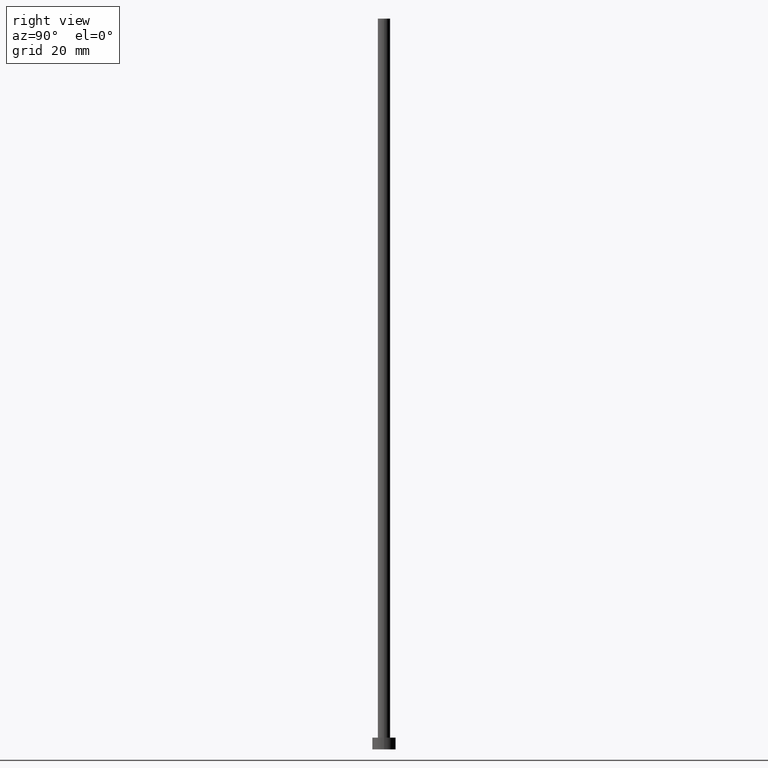
[diagram: clean part render]
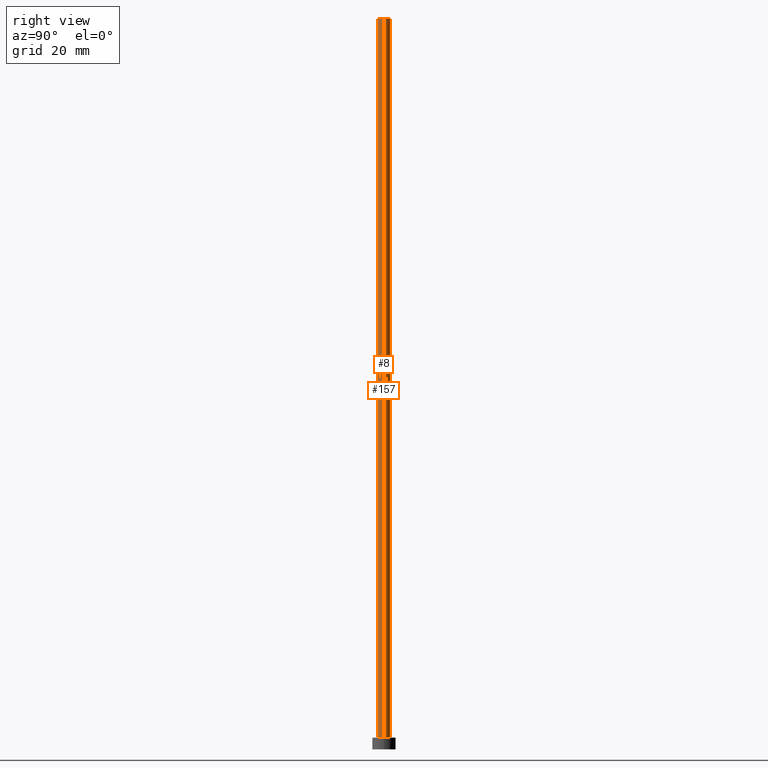
[diagram: same view with one multi-face feature highlighted, each face labeled with its STEP entity id]
A machine part, right view. The highlighted faces form ONE feature: a constant-radius fillet chain: 2 tangent blend faces with common blend radius 2.1 mm. The faces share edges in the B-rep.
Their STEP definitions:
[1] entity #157 (Cylinder):
#3 = CIRCLE ( 'NONE', #251, 2.100000000000000089 ) ;
#7 = AXIS2_PLACEMENT_3D ( 'NONE', #243, #83, #69 ) ;
#9 = CARTESIAN_POINT ( 'NONE',  ( -2.100000000000000089, 0.000000000000000000, 4.000000000000000000 ) ) ;
#34 = VERTEX_POINT ( 'NONE', #161 ) ;
#35 = FACE_OUTER_BOUND ( 'NONE', #71, .T. ) ;
#48 = EDGE_CURVE ( 'NONE', #34, #76, #232, .T. ) ;
#52 = ORIENTED_EDGE ( 'NONE', *, *, #119, .F. ) ;
#55 = CYLINDRICAL_SURFACE ( 'NONE', #67, 2.100000000000000089 ) ;
#67 = AXIS2_PLACEMENT_3D ( 'NONE', #88, #148, #128 ) ;
#69 = DIRECTION ( 'NONE',  ( 1.000000000000000000, 0.000000000000000000, 0.000000000000000000 ) ) ;
#71 = EDGE_LOOP ( 'NONE', ( #101, #75, #249, #52 ) ) ;
#72 = CARTESIAN_POINT ( 'NONE',  ( 2.100000000000000089, 2.571758278209441957E-16, 250.0000000000000000 ) ) ;
#74 = CARTESIAN_POINT ( 'NONE',  ( 0.000000000000000000, 0.000000000000000000, 4.000000000000000000 ) ) ;
#75 = ORIENTED_EDGE ( 'NONE', *, *, #153, .T. ) ;
#76 = VERTEX_POINT ( 'NONE', #246 ) ;
#77 = DIRECTION ( 'NONE',  ( -0.000000000000000000, -0.000000000000000000, -1.000000000000000000 ) ) ;
#83 = DIRECTION ( 'NONE',  ( 0.000000000000000000, 0.000000000000000000, 1.000000000000000000 ) ) ;
#88 = CARTESIAN_POINT ( 'NONE',  ( 0.000000000000000000, 0.000000000000000000, 250.0000000000000000 ) ) ;
#101 = ORIENTED_EDGE ( 'NONE', *, *, #48, .F. ) ;
#102 = LINE ( 'NONE', #187, #143 ) ;
#105 = VERTEX_POINT ( 'NONE', #244 ) ;
#119 = EDGE_CURVE ( 'NONE', #76, #123, #102, .T. ) ;
#123 = VERTEX_POINT ( 'NONE', #9 ) ;
#124 = DIRECTION ( 'NONE',  ( 1.000000000000000000, 0.000000000000000000, 0.000000000000000000 ) ) ;
#126 = DIRECTION ( 'NONE',  ( -0.000000000000000000, -0.000000000000000000, -1.000000000000000000 ) ) ;
#128 = DIRECTION ( 'NONE',  ( -1.000000000000000000, 0.000000000000000000, 0.000000000000000000 ) ) ;
#138 = EDGE_CURVE ( 'NONE', #105, #123, #3, .T. ) ;
#143 = VECTOR ( 'NONE', #77, 1000.000000000000000 ) ;
#148 = DIRECTION ( 'NONE',  ( -0.000000000000000000, -0.000000000000000000, -1.000000000000000000 ) ) ;
#153 = EDGE_CURVE ( 'NONE', #34, #105, #209, .T. ) ;
#157 = ADVANCED_FACE ( 'NONE', ( #35 ), #55, .T. ) ;
#161 = CARTESIAN_POINT ( 'NONE',  ( 2.100000000000000089, 2.571758278209441957E-16, 250.0000000000000000 ) ) ;
#187 = CARTESIAN_POINT ( 'NONE',  ( -2.100000000000000089, 0.000000000000000000, 250.0000000000000000 ) ) ;
#209 = LINE ( 'NONE', #72, #242 ) ;
#229 = DIRECTION ( 'NONE',  ( 0.000000000000000000, 0.000000000000000000, 1.000000000000000000 ) ) ;
#232 = CIRCLE ( 'NONE', #7, 2.100000000000000089 ) ;
#242 = VECTOR ( 'NONE', #126, 1000.000000000000000 ) ;
#243 = CARTESIAN_POINT ( 'NONE',  ( 0.000000000000000000, 0.000000000000000000, 250.0000000000000000 ) ) ;
#244 = CARTESIAN_POINT ( 'NONE',  ( 2.100000000000000089, 2.571758278209441957E-16, 4.000000000000000000 ) ) ;
#246 = CARTESIAN_POINT ( 'NONE',  ( -2.100000000000000089, 0.000000000000000000, 250.0000000000000000 ) ) ;
#249 = ORIENTED_EDGE ( 'NONE', *, *, #138, .T. ) ;
#251 = AXIS2_PLACEMENT_3D ( 'NONE', #74, #229, #124 ) ;
[2] entity #8 (Cylinder):
#6 = ORIENTED_EDGE ( 'NONE', *, *, #119, .T. ) ;
#8 = ADVANCED_FACE ( 'NONE', ( #150 ), #140, .T. ) ;
#9 = CARTESIAN_POINT ( 'NONE',  ( -2.100000000000000089, 0.000000000000000000, 4.000000000000000000 ) ) ;
#17 = AXIS2_PLACEMENT_3D ( 'NONE', #186, #33, #169 ) ;
#28 = CARTESIAN_POINT ( 'NONE',  ( 0.000000000000000000, 0.000000000000000000, 250.0000000000000000 ) ) ;
#32 = ORIENTED_EDGE ( 'NONE', *, *, #235, .T. ) ;
#33 = DIRECTION ( 'NONE',  ( 0.000000000000000000, 0.000000000000000000, 1.000000000000000000 ) ) ;
#34 = VERTEX_POINT ( 'NONE', #161 ) ;
#44 = CIRCLE ( 'NONE', #149, 2.100000000000000089 ) ;
#46 = DIRECTION ( 'NONE',  ( -0.000000000000000000, -0.000000000000000000, -1.000000000000000000 ) ) ;
#53 = EDGE_LOOP ( 'NONE', ( #132, #208, #6, #32 ) ) ;
#72 = CARTESIAN_POINT ( 'NONE',  ( 2.100000000000000089, 2.571758278209441957E-16, 250.0000000000000000 ) ) ;
#76 = VERTEX_POINT ( 'NONE', #246 ) ;
#77 = DIRECTION ( 'NONE',  ( -0.000000000000000000, -0.000000000000000000, -1.000000000000000000 ) ) ;
#96 = EDGE_CURVE ( 'NONE', #76, #34, #103, .T. ) ;
#102 = LINE ( 'NONE', #187, #143 ) ;
#103 = CIRCLE ( 'NONE', #17, 2.100000000000000089 ) ;
#104 = DIRECTION ( 'NONE',  ( -1.000000000000000000, 0.000000000000000000, 0.000000000000000000 ) ) ;
#105 = VERTEX_POINT ( 'NONE', #244 ) ;
#111 = DIRECTION ( 'NONE',  ( 1.000000000000000000, 0.000000000000000000, 0.000000000000000000 ) ) ;
#119 = EDGE_CURVE ( 'NONE', #76, #123, #102, .T. ) ;
#123 = VERTEX_POINT ( 'NONE', #9 ) ;
#126 = DIRECTION ( 'NONE',  ( -0.000000000000000000, -0.000000000000000000, -1.000000000000000000 ) ) ;
#132 = ORIENTED_EDGE ( 'NONE', *, *, #153, .F. ) ;
#140 = CYLINDRICAL_SURFACE ( 'NONE', #224, 2.100000000000000089 ) ;
#143 = VECTOR ( 'NONE', #77, 1000.000000000000000 ) ;
#149 = AXIS2_PLACEMENT_3D ( 'NONE', #212, #190, #111 ) ;
#150 = FACE_OUTER_BOUND ( 'NONE', #53, .T. ) ;
#153 = EDGE_CURVE ( 'NONE', #34, #105, #209, .T. ) ;
#161 = CARTESIAN_POINT ( 'NONE',  ( 2.100000000000000089, 2.571758278209441957E-16, 250.0000000000000000 ) ) ;
#169 = DIRECTION ( 'NONE',  ( 1.000000000000000000, 0.000000000000000000, 0.000000000000000000 ) ) ;
#186 = CARTESIAN_POINT ( 'NONE',  ( 0.000000000000000000, 0.000000000000000000, 250.0000000000000000 ) ) ;
#187 = CARTESIAN_POINT ( 'NONE',  ( -2.100000000000000089, 0.000000000000000000, 250.0000000000000000 ) ) ;
#190 = DIRECTION ( 'NONE',  ( 0.000000000000000000, 0.000000000000000000, 1.000000000000000000 ) ) ;
#208 = ORIENTED_EDGE ( 'NONE', *, *, #96, .F. ) ;
#209 = LINE ( 'NONE', #72, #242 ) ;
#212 = CARTESIAN_POINT ( 'NONE',  ( 0.000000000000000000, 0.000000000000000000, 4.000000000000000000 ) ) ;
#224 = AXIS2_PLACEMENT_3D ( 'NONE', #28, #46, #104 ) ;
#235 = EDGE_CURVE ( 'NONE', #123, #105, #44, .T. ) ;
#242 = VECTOR ( 'NONE', #126, 1000.000000000000000 ) ;
#244 = CARTESIAN_POINT ( 'NONE',  ( 2.100000000000000089, 2.571758278209441957E-16, 4.000000000000000000 ) ) ;
#246 = CARTESIAN_POINT ( 'NONE',  ( -2.100000000000000089, 0.000000000000000000, 250.0000000000000000 ) ) ;